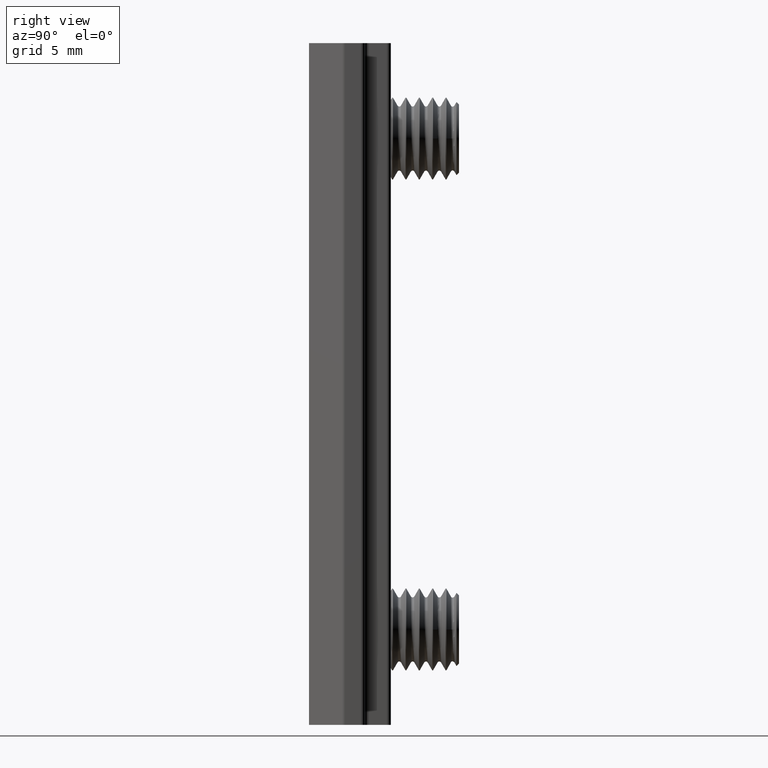
[diagram: clean part render]
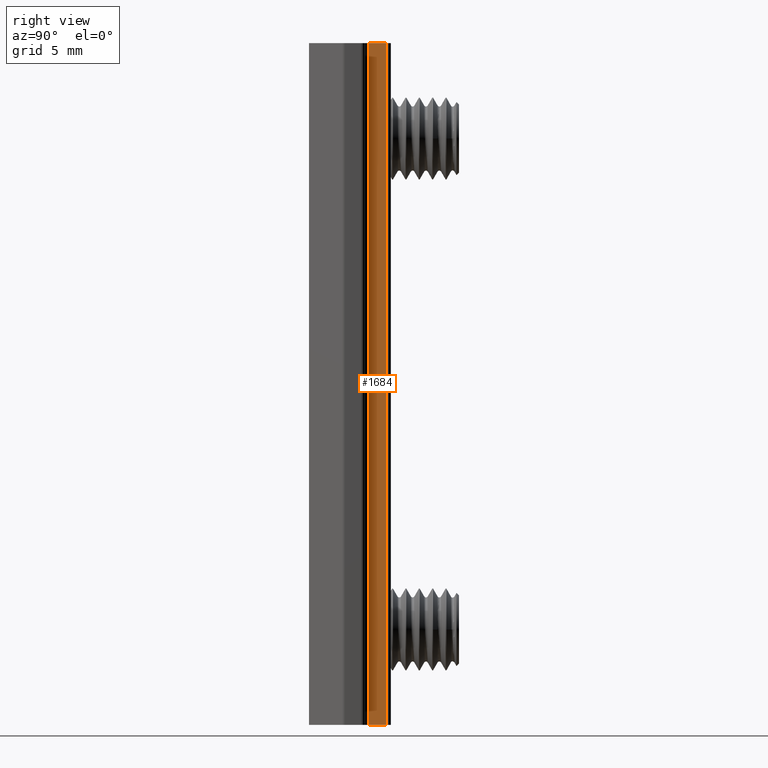
[diagram: same view with one face highlighted and labeled with its STEP entity id]
A machine part, right view. The second image highlights one B-rep face of the part: STEP entity #1684.
In plain terms, the highlighted planar face has unit normal (-1, 0, 0).
Its self-contained STEP definition (entity closure, byte-faithful):
#25 = CARTESIAN_POINT ( 'NONE',  ( 4.000000000000003600, 5.700000000000003700, 25.00000000000000000 ) ) ;
#178 = DIRECTION ( 'NONE',  ( 4.565061778886341900E-016, 1.000000000000000000, -0.0000000000000000000 ) ) ;
#182 = EDGE_CURVE ( 'NONE', #951, #1924, #1400, .T. ) ;
#186 = CARTESIAN_POINT ( 'NONE',  ( 4.000000000000003600, 5.700000000000003700, -25.00000000000000000 ) ) ;
#310 = VERTEX_POINT ( 'NONE', #465 ) ;
#324 = AXIS2_PLACEMENT_3D ( 'NONE', #1717, #2662, #1337 ) ;
#465 = CARTESIAN_POINT ( 'NONE',  ( 4.000000000000002700, 4.399999999999998600, 25.00000000000000000 ) ) ;
#551 = VECTOR ( 'NONE', #1744, 1000.000000000000000 ) ;
#679 = VECTOR ( 'NONE', #3937, 1000.000000000000000 ) ;
#787 = LINE ( 'NONE', #4248, #679 ) ;
#951 = VERTEX_POINT ( 'NONE', #3252 ) ;
#1324 = ORIENTED_EDGE ( 'NONE', *, *, #3261, .F. ) ;
#1337 = DIRECTION ( 'NONE',  ( -4.565061778886341900E-016, -1.000000000000000000, 0.0000000000000000000 ) ) ;
#1394 = CARTESIAN_POINT ( 'NONE',  ( 4.000000000000002700, 4.099999999999998800, -25.00000000000000000 ) ) ;
#1400 = LINE ( 'NONE', #25, #551 ) ;
#1425 = EDGE_CURVE ( 'NONE', #310, #951, #3684, .T. ) ;
#1684 = ADVANCED_FACE ( 'NONE', ( #3146 ), #3413, .F. ) ;
#1717 = CARTESIAN_POINT ( 'NONE',  ( 4.000000000000002700, 4.099999999999998800, 25.00000000000000000 ) ) ;
#1744 = DIRECTION ( 'NONE',  ( 0.0000000000000000000, 0.0000000000000000000, -1.000000000000000000 ) ) ;
#1873 = VECTOR ( 'NONE', #178, 1000.000000000000000 ) ;
#1924 = VERTEX_POINT ( 'NONE', #186 ) ;
#2373 = DIRECTION ( 'NONE',  ( -4.565061778886341900E-016, -1.000000000000000000, 0.0000000000000000000 ) ) ;
#2516 = ORIENTED_EDGE ( 'NONE', *, *, #1425, .F. ) ;
#2662 = DIRECTION ( 'NONE',  ( -1.000000000000000000, 4.565061778886341900E-016, 0.0000000000000000000 ) ) ;
#2884 = CARTESIAN_POINT ( 'NONE',  ( 4.000000000000002700, 4.099999999999998800, 25.00000000000000000 ) ) ;
#3146 = FACE_OUTER_BOUND ( 'NONE', #4140, .T. ) ;
#3177 = ORIENTED_EDGE ( 'NONE', *, *, #4107, .T. ) ;
#3252 = CARTESIAN_POINT ( 'NONE',  ( 4.000000000000003600, 5.700000000000003700, 25.00000000000000000 ) ) ;
#3261 = EDGE_CURVE ( 'NONE', #1924, #3762, #4319, .T. ) ;
#3350 = CARTESIAN_POINT ( 'NONE',  ( 4.000000000000002700, 4.399999999999998600, -25.00000000000000000 ) ) ;
#3413 = PLANE ( 'NONE',  #324 ) ;
#3684 = LINE ( 'NONE', #2884, #1873 ) ;
#3762 = VERTEX_POINT ( 'NONE', #3350 ) ;
#3809 = ORIENTED_EDGE ( 'NONE', *, *, #182, .F. ) ;
#3937 = DIRECTION ( 'NONE',  ( -0.0000000000000000000, -0.0000000000000000000, -1.000000000000000000 ) ) ;
#4053 = VECTOR ( 'NONE', #2373, 1000.000000000000000 ) ;
#4107 = EDGE_CURVE ( 'NONE', #310, #3762, #787, .T. ) ;
#4140 = EDGE_LOOP ( 'NONE', ( #1324, #3809, #2516, #3177 ) ) ;
#4248 = CARTESIAN_POINT ( 'NONE',  ( 4.000000000000002700, 4.399999999999998600, 25.00000000000000000 ) ) ;
#4319 = LINE ( 'NONE', #1394, #4053 ) ;